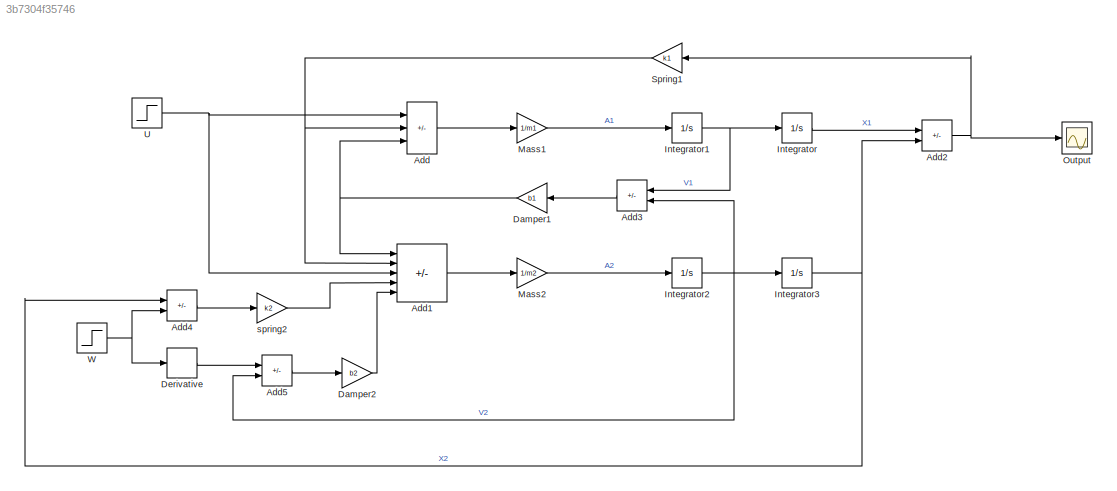
MODEL slx_3b7304f35746
KIND model
CONFIG AbsTol = auto
CONFIG EnableMultiTasking = off
CONFIG FixedStep = auto
CONFIG MaxStep = auto
CONFIG MinStep = auto
CONFIG RelTol = 1e-3
CONFIG SampleTimeConstraint = Unconstrained
CONFIG Solver = VariableStepAuto
CONFIG SolverName = VariableStepAuto
CONFIG StartTime = 0.0
CONFIG StopTime = 50
BLOCK [Sum] Add
  IconShape = rectangular
  Inputs = +--
  Ports = [3, 1]
BLOCK [Sum] Add1
  IconShape = rectangular
  Inputs = ++-++
  Ports = [5, 1]
BLOCK [Sum] Add2
  IconShape = rectangular
  Inputs = +-
  Ports = [2, 1]
BLOCK [Sum] Add3
  IconShape = rectangular
  Inputs = +-
  Ports = [2, 1]
BLOCK [Sum] Add4
  IconShape = rectangular
  Inputs = -+
  Ports = [2, 1]
BLOCK [Sum] Add5
  IconShape = rectangular
  Inputs = +-
  Ports = [2, 1]
BLOCK [Gain] Damper1
  Gain = b1
BLOCK [Gain] Damper2
  Gain = b2
BLOCK [Derivative] Derivative
BLOCK [Integrator] Integrator
  Ports = [1, 1]
BLOCK [Integrator] Integrator1
  Ports = [1, 1]
BLOCK [Integrator] Integrator2
  Ports = [1, 1]
BLOCK [Integrator] Integrator3
  Ports = [1, 1]
BLOCK [Gain] Mass1
  Gain = 1/m1
BLOCK [Gain] Mass2
  Gain = 1/m2
BLOCK [Scope] Output
  Floating = off
  NumInputPorts = 1
  Ports = [1]
  ScopeSpecificationString = Simulink.scopes.TimeScopeBlockCfg('CurrentConfiguration', extmgr.ConfigurationSet(extmgr.Configuration('Core','General UI',true),extmgr.Configuration('Core','Source UI',true),extmgr.Configuration('Sources','WiredSimulink',true),extmgr.Configuration('Visuals','Time Domain',true,'SerializedDisplays',{struct('MinYLimReal','-0.000003','MaxYLimReal','0.000025','YLabelReal','','MinYLimMag','0.000000','M...<+1407ch>
BLOCK [Gain] Spring1
  Gain = k1
BLOCK [Step] U
  SampleTime = 0
  Time = 0
BLOCK [Step] W
  After = 0
  SampleTime = 0
  Time = 0
BLOCK [Gain] spring2
  Gain = k2
LINE Add1:1 -> Mass2:1
NET Add2:1 -> Output:1, Spring1:1
LINE Add3:1 -> Damper1:1
LINE Add4:1 -> spring2:1
LINE Add5:1 -> Damper2:1
LINE Add:1 -> Mass1:1
NET Damper1:1 -> Add1:1, Add:3
LINE Damper2:1 -> Add1:5
LINE Derivative:1 -> Add5:1
NET Integrator1:1 -> Add3:1, Integrator:1
NET Integrator2:1 -> Add3:2, Add5:2, Integrator3:1
NET Integrator3:1 -> Add2:2, Add4:1
LINE Integrator:1 -> Add2:1
LINE Mass1:1 -> Integrator1:1
LINE Mass2:1 -> Integrator2:1
NET Spring1:1 -> Add1:2, Add:2
NET U:1 -> Add1:3, Add:1
NET W:1 -> Add4:2, Derivative:1
LINE spring2:1 -> Add1:4
note: NET lines group one-source signal fan-out (src -> all destinations, sorted); 1:1 wires keep LINE
